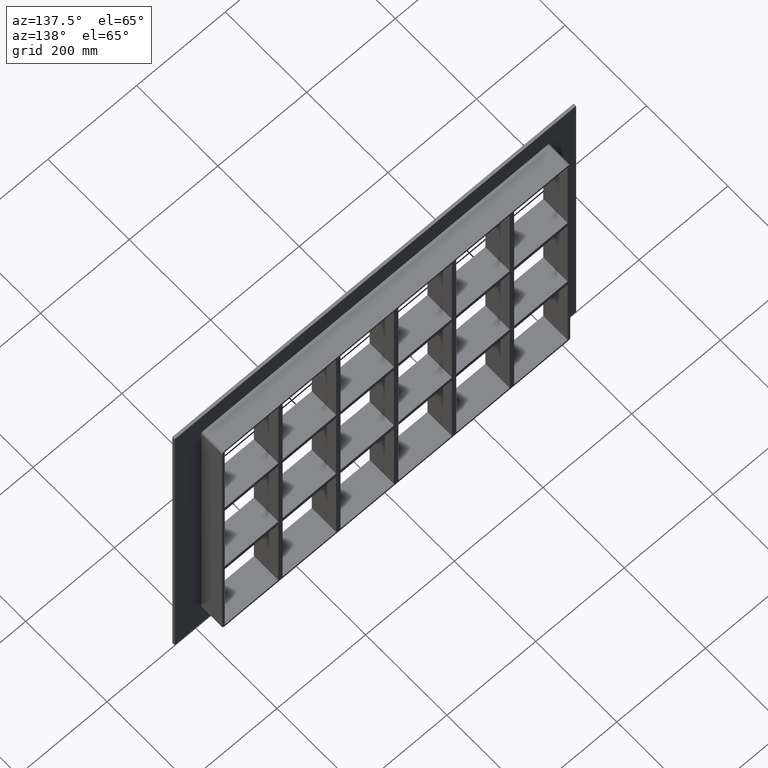
[diagram: clean part render]
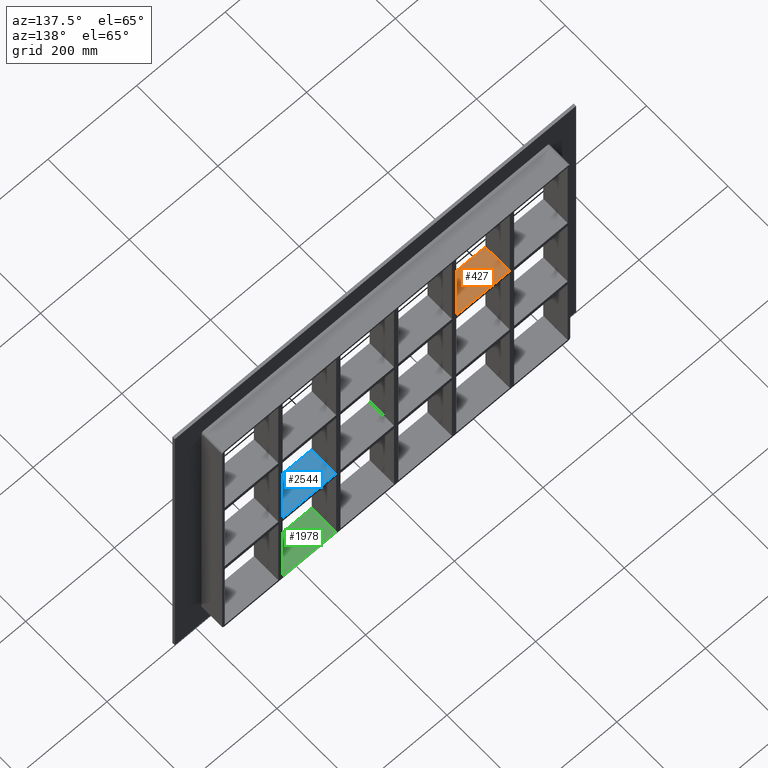
[diagram: same view with three faces highlighted in distinct colors, each labeled with its STEP entity id]
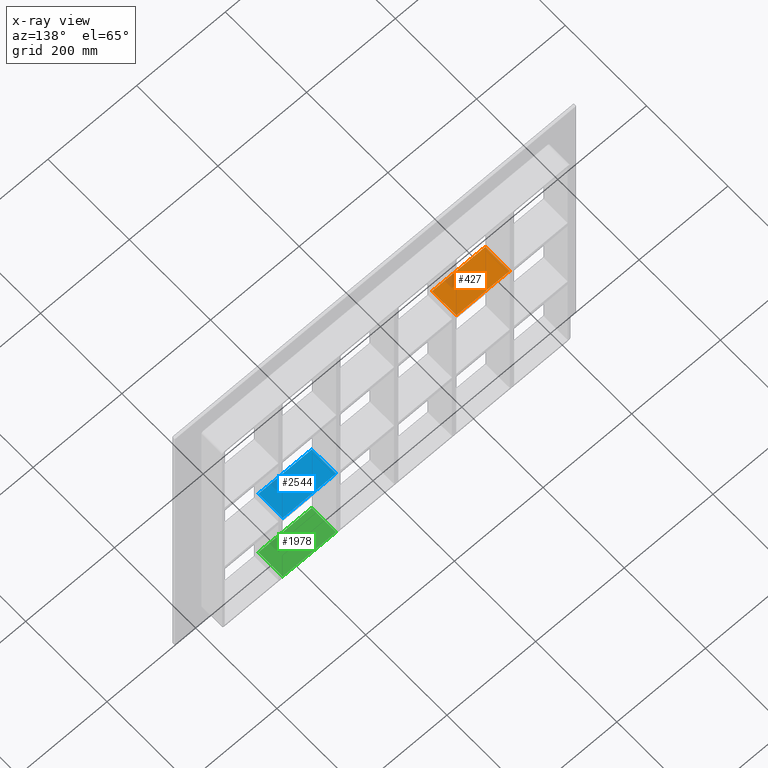
[diagram: x-ray of the same camera — body ghosted, the three highlighted faces saturated]
A machine part, auxiliary view with three faces highlighted in distinct colors.
The next image is the same camera in x-ray (body ghosted, the three faces saturated) — at least one of them is partly hidden behind the body in this view.
Their STEP definitions:

[orange] entity #427 — the highlighted planar face has unit normal (0, 0, 1).
#388=CARTESIAN_POINT('',(-386.49999999999977,-3.0,120.99999999999994));
#389=DIRECTION('',(0.0,0.0,1.0));
#390=DIRECTION('',(1.0,0.0,0.0));
#391=AXIS2_PLACEMENT_3D('',#388,#389,#390);
#392=PLANE('',#391);
#393=CARTESIAN_POINT('',(-135.50000000000139,57.0,120.99999999999994));
#394=VERTEX_POINT('',#393);
#395=CARTESIAN_POINT('',(-135.50000000000139,-3.0,120.99999999999994));
#396=VERTEX_POINT('',#395);
#397=CARTESIAN_POINT('',(-135.50000000000142,57.0,120.99999999999994));
#398=DIRECTION('',(0.0,-1.0,0.0));
#399=VECTOR('',#398,60.0);
#400=LINE('',#397,#399);
#401=EDGE_CURVE('',#394,#396,#400,.T.);
#402=ORIENTED_EDGE('',*,*,#401,.F.);
#403=CARTESIAN_POINT('',(-256.00000000000364,57.0,120.99999999999994));
#404=VERTEX_POINT('',#403);
#405=CARTESIAN_POINT('',(-256.00000000000364,57.0,120.99999999999994));
#406=DIRECTION('',(1.0,0.0,0.0));
#407=VECTOR('',#406,120.50000000000225);
#408=LINE('',#405,#407);
#409=EDGE_CURVE('',#404,#394,#408,.T.);
#410=ORIENTED_EDGE('',*,*,#409,.F.);
#411=CARTESIAN_POINT('',(-256.00000000000364,-3.0,120.99999999999994));
#412=VERTEX_POINT('',#411);
#413=CARTESIAN_POINT('',(-256.00000000000364,-3.0,120.99999999999994));
#414=DIRECTION('',(0.0,1.0,0.0));
#415=VECTOR('',#414,60.0);
#416=LINE('',#413,#415);
#417=EDGE_CURVE('',#412,#404,#416,.T.);
#418=ORIENTED_EDGE('',*,*,#417,.F.);
#419=CARTESIAN_POINT('',(-256.00000000000364,-3.0,120.99999999999994));
#420=DIRECTION('',(1.0,0.0,0.0));
#421=VECTOR('',#420,120.50000000000225);
#422=LINE('',#419,#421);
#423=EDGE_CURVE('',#412,#396,#422,.T.);
#424=ORIENTED_EDGE('',*,*,#423,.T.);
#425=EDGE_LOOP('',(#402,#410,#418,#424));
#426=FACE_OUTER_BOUND('',#425,.T.);
#427=ADVANCED_FACE('',(#426),#392,.T.);

[blue] entity #2544 — the highlighted planar face has unit normal (0, 0, 1).
#1149=CARTESIAN_POINT('',(135.49999999999642,57.0,-109.00000000000006));
#1150=VERTEX_POINT('',#1149);
#1157=CARTESIAN_POINT('',(255.99999999999866,57.0,-109.00000000000006));
#1158=VERTEX_POINT('',#1157);
#1159=CARTESIAN_POINT('',(135.49999999999636,57.0,-109.00000000000006));
#1160=DIRECTION('',(1.0,0.0,0.0));
#1161=VECTOR('',#1160,120.50000000000227);
#1162=LINE('',#1159,#1161);
#1163=EDGE_CURVE('',#1150,#1158,#1162,.T.);
#1471=CARTESIAN_POINT('',(255.99999999999866,-3.0,-109.00000000000006));
#1472=VERTEX_POINT('',#1471);
#1473=CARTESIAN_POINT('',(255.99999999999866,-3.0,-109.00000000000006));
#1474=DIRECTION('',(0.0,1.0,0.0));
#1475=VECTOR('',#1474,60.0);
#1476=LINE('',#1473,#1475);
#1477=EDGE_CURVE('',#1472,#1158,#1476,.T.);
#1635=CARTESIAN_POINT('',(135.49999999999642,-3.0,-109.00000000000006));
#1636=VERTEX_POINT('',#1635);
#1643=CARTESIAN_POINT('',(135.49999999999642,57.0,-109.00000000000006));
#1644=DIRECTION('',(0.0,-1.0,0.0));
#1645=VECTOR('',#1644,60.0);
#1646=LINE('',#1643,#1645);
#1647=EDGE_CURVE('',#1150,#1636,#1646,.T.);
#2101=CARTESIAN_POINT('',(135.49999999999636,-3.0,-109.00000000000006));
#2102=DIRECTION('',(1.0,0.0,0.0));
#2103=VECTOR('',#2102,120.50000000000227);
#2104=LINE('',#2101,#2103);
#2105=EDGE_CURVE('',#1636,#1472,#2104,.T.);
#2533=CARTESIAN_POINT('',(-386.49999999999977,-3.0,-109.00000000000006));
#2534=DIRECTION('',(0.0,0.0,1.0));
#2535=DIRECTION('',(1.0,0.0,0.0));
#2536=AXIS2_PLACEMENT_3D('',#2533,#2534,#2535);
#2537=PLANE('',#2536);
#2538=ORIENTED_EDGE('',*,*,#1477,.T.);
#2539=ORIENTED_EDGE('',*,*,#1163,.F.);
#2540=ORIENTED_EDGE('',*,*,#1647,.T.);
#2541=ORIENTED_EDGE('',*,*,#2105,.T.);
#2542=EDGE_LOOP('',(#2538,#2539,#2540,#2541));
#2543=FACE_OUTER_BOUND('',#2542,.T.);
#2544=ADVANCED_FACE('',(#2543),#2537,.T.);

[green] entity #1978 — the highlighted planar face has unit normal (0, 0, -1).
#1384=CARTESIAN_POINT('',(255.99999999999869,57.0,-339.00000000000006));
#1385=VERTEX_POINT('',#1384);
#1402=CARTESIAN_POINT('',(135.49999999999642,57.0,-338.99999999998431));
#1403=VERTEX_POINT('',#1402);
#1410=CARTESIAN_POINT('',(135.49999999999642,57.0,-339.00000000000006));
#1411=DIRECTION('',(1.0,0.0,0.0));
#1412=VECTOR('',#1411,120.50000000000227);
#1413=LINE('',#1410,#1412);
#1414=EDGE_CURVE('',#1403,#1385,#1413,.T.);
#1502=CARTESIAN_POINT('',(255.99999999999869,-3.0,-339.00000000000006));
#1503=VERTEX_POINT('',#1502);
#1504=CARTESIAN_POINT('',(255.99999999999866,-3.0,-339.00000000000006));
#1505=DIRECTION('',(0.0,1.0,0.0));
#1506=VECTOR('',#1505,60.000000000000007);
#1507=LINE('',#1504,#1506);
#1508=EDGE_CURVE('',#1503,#1385,#1507,.T.);
#1666=CARTESIAN_POINT('',(135.49999999999642,-3.0,-338.99999999998431));
#1667=VERTEX_POINT('',#1666);
#1674=CARTESIAN_POINT('',(135.49999999999642,57.000000000000007,-339.00000000000006));
#1675=DIRECTION('',(0.0,-1.0,0.0));
#1676=VECTOR('',#1675,60.000000000000007);
#1677=LINE('',#1674,#1676);
#1678=EDGE_CURVE('',#1403,#1667,#1677,.T.);
#1962=CARTESIAN_POINT('',(386.50000000000006,0.0,-339.00000000000006));
#1963=DIRECTION('',(0.0,0.0,-1.0));
#1964=DIRECTION('',(-1.0,0.0,0.0));
#1965=AXIS2_PLACEMENT_3D('',#1962,#1963,#1964);
#1966=PLANE('',#1965);
#1967=ORIENTED_EDGE('',*,*,#1508,.T.);
#1968=ORIENTED_EDGE('',*,*,#1414,.F.);
#1969=ORIENTED_EDGE('',*,*,#1678,.T.);
#1970=CARTESIAN_POINT('',(255.99999999999869,-3.0,-339.00000000000006));
#1971=DIRECTION('',(-1.0,0.0,0.0));
#1972=VECTOR('',#1971,120.50000000000227);
#1973=LINE('',#1970,#1972);
#1974=EDGE_CURVE('',#1503,#1667,#1973,.T.);
#1975=ORIENTED_EDGE('',*,*,#1974,.F.);
#1976=EDGE_LOOP('',(#1967,#1968,#1969,#1975));
#1977=FACE_OUTER_BOUND('',#1976,.T.);
#1978=ADVANCED_FACE('',(#1977),#1966,.F.);